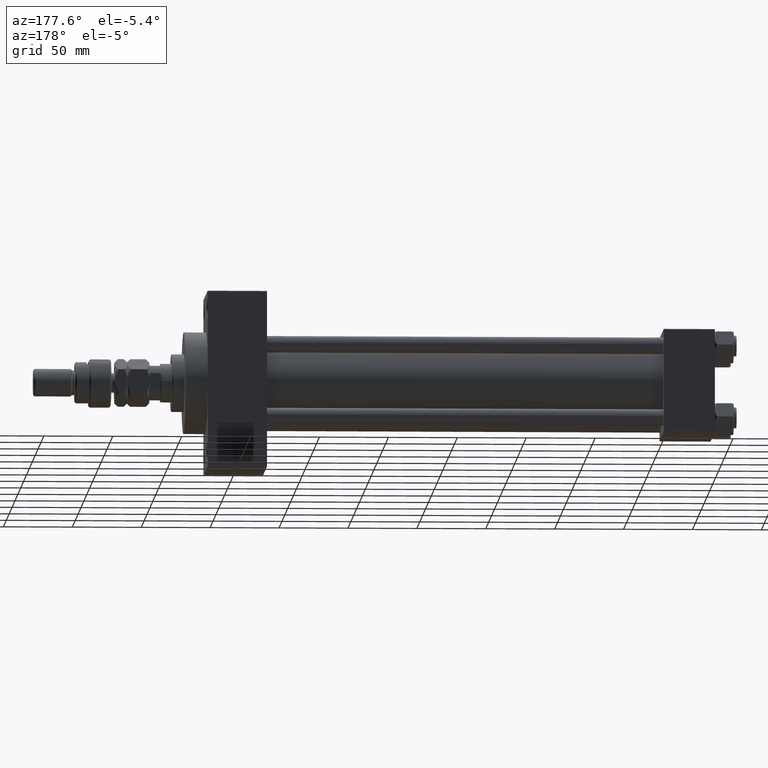
[diagram: clean part render]
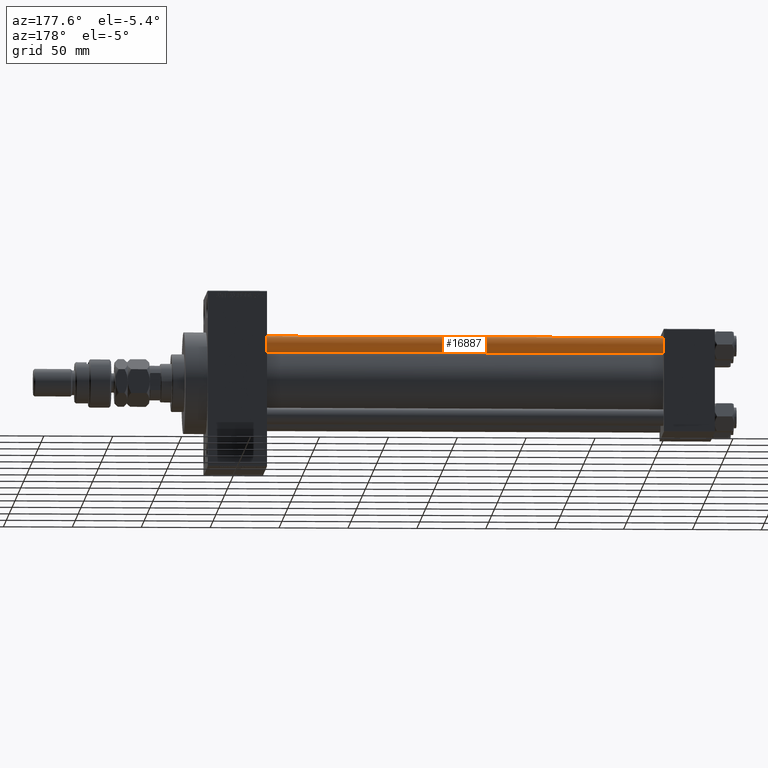
[diagram: same view with one face highlighted and labeled with its STEP entity id]
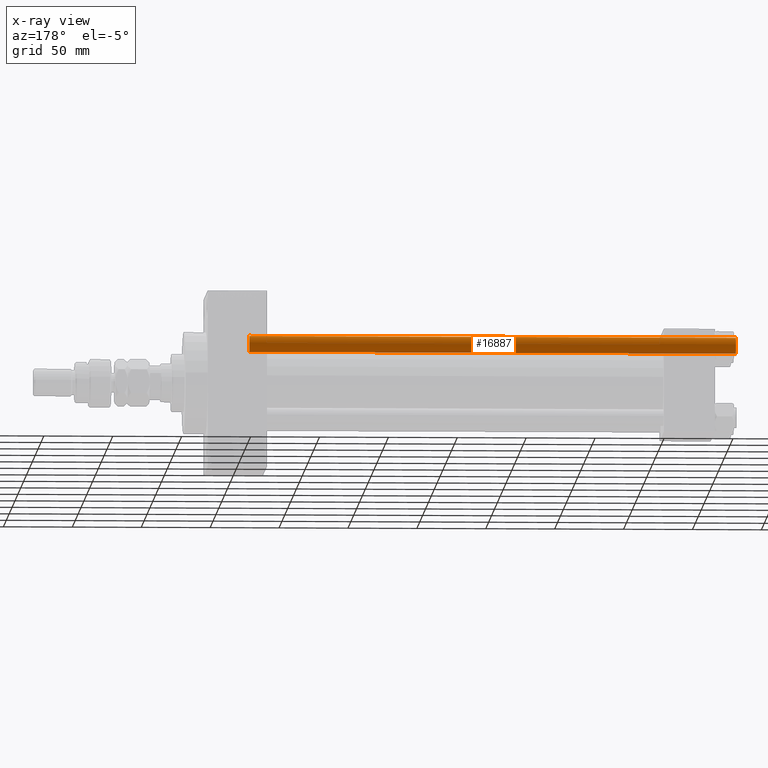
[diagram: x-ray of the same camera — body ghosted, the highlighted face saturated]
A machine part, auxiliary view. The second image highlights one B-rep face of the part: STEP entity #16887.
The next image is the same camera in x-ray: the body ghosted, the highlighted face saturated — about 0% of this face is hidden behind the body in this view.
In plain terms, the highlighted cylindrical surface (edge-blend (fillet) strip) has radius 6 mm, axis along (-1, -0, 0).
Its self-contained STEP definition (entity closure, byte-faithful):
#582 = CARTESIAN_POINT ( 'NONE',  ( 6.000000000000000888, 7.347880794884120722E-16, 0.5000000000000559552 ) ) ;
#826 = VERTEX_POINT ( 'NONE', #44608 ) ;
#1334 = DIRECTION ( 'NONE',  ( 1.000000000000000000, 0.000000000000000000, 0.000000000000000000 ) ) ;
#5369 = AXIS2_PLACEMENT_3D ( 'NONE', #40395, #5736, #47726 ) ;
#5736 = DIRECTION ( 'NONE',  ( 0.000000000000000000, 0.000000000000000000, -1.000000000000000000 ) ) ;
#6503 = LINE ( 'NONE', #21699, #35745 ) ;
#7969 = EDGE_CURVE ( 'NONE', #45831, #826, #47400, .T. ) ;
#9788 = CYLINDRICAL_SURFACE ( 'NONE', #24667, 6.000000000000000888 ) ;
#10794 = DIRECTION ( 'NONE',  ( -1.000000000000000000, 0.000000000000000000, 0.000000000000000000 ) ) ;
#14586 = DIRECTION ( 'NONE',  ( -0.000000000000000000, -0.000000000000000000, -1.000000000000000000 ) ) ;
#14621 = LINE ( 'NONE', #21728, #27996 ) ;
#15423 = EDGE_CURVE ( 'NONE', #30646, #32602, #47251, .T. ) ;
#16887 = ADVANCED_FACE ( 'NONE', ( #25483 ), #9788, .T. ) ;
#18262 = EDGE_CURVE ( 'NONE', #826, #30646, #14621, .T. ) ;
#19739 = ORIENTED_EDGE ( 'NONE', *, *, #45723, .F. ) ;
#20588 = DIRECTION ( 'NONE',  ( -0.000000000000000000, -0.000000000000000000, 1.000000000000000000 ) ) ;
#21094 = CARTESIAN_POINT ( 'NONE',  ( -6.000000000000000888, 0.000000000000000000, 0.5000000000000559552 ) ) ;
#21490 = ORIENTED_EDGE ( 'NONE', *, *, #7969, .T. ) ;
#21699 = CARTESIAN_POINT ( 'NONE',  ( -6.000000000000000888, 0.000000000000000000, 354.0000000000000000 ) ) ;
#21728 = CARTESIAN_POINT ( 'NONE',  ( 6.000000000000000888, 7.347880794884120722E-16, 354.0000000000000000 ) ) ;
#21948 = DIRECTION ( 'NONE',  ( -0.000000000000000000, -0.000000000000000000, -1.000000000000000000 ) ) ;
#24667 = AXIS2_PLACEMENT_3D ( 'NONE', #44428, #14586, #10794 ) ;
#25483 = FACE_OUTER_BOUND ( 'NONE', #43611, .T. ) ;
#27996 = VECTOR ( 'NONE', #37137, 1000.000000000000000 ) ;
#30646 = VERTEX_POINT ( 'NONE', #582 ) ;
#32602 = VERTEX_POINT ( 'NONE', #21094 ) ;
#35745 = VECTOR ( 'NONE', #21948, 1000.000000000000000 ) ;
#37137 = DIRECTION ( 'NONE',  ( -0.000000000000000000, -0.000000000000000000, -1.000000000000000000 ) ) ;
#37478 = ORIENTED_EDGE ( 'NONE', *, *, #15423, .T. ) ;
#39794 = CARTESIAN_POINT ( 'NONE',  ( 0.000000000000000000, 0.000000000000000000, 0.5000000000000559552 ) ) ;
#40395 = CARTESIAN_POINT ( 'NONE',  ( 0.000000000000000000, 0.000000000000000000, 353.5000000000000000 ) ) ;
#42260 = ORIENTED_EDGE ( 'NONE', *, *, #18262, .T. ) ;
#43212 = AXIS2_PLACEMENT_3D ( 'NONE', #39794, #20588, #1334 ) ;
#43611 = EDGE_LOOP ( 'NONE', ( #21490, #42260, #37478, #19739 ) ) ;
#44428 = CARTESIAN_POINT ( 'NONE',  ( 0.000000000000000000, 0.000000000000000000, 354.0000000000000000 ) ) ;
#44608 = CARTESIAN_POINT ( 'NONE',  ( 6.000000000000000888, 7.347880794884120722E-16, 353.5000000000000000 ) ) ;
#45723 = EDGE_CURVE ( 'NONE', #45831, #32602, #6503, .T. ) ;
#45831 = VERTEX_POINT ( 'NONE', #49994 ) ;
#47251 = CIRCLE ( 'NONE', #43212, 6.000000000000000888 ) ;
#47400 = CIRCLE ( 'NONE', #5369, 6.000000000000000888 ) ;
#47726 = DIRECTION ( 'NONE',  ( 1.000000000000000000, 0.000000000000000000, 0.000000000000000000 ) ) ;
#49994 = CARTESIAN_POINT ( 'NONE',  ( -6.000000000000000888, 0.000000000000000000, 353.5000000000000000 ) ) ;